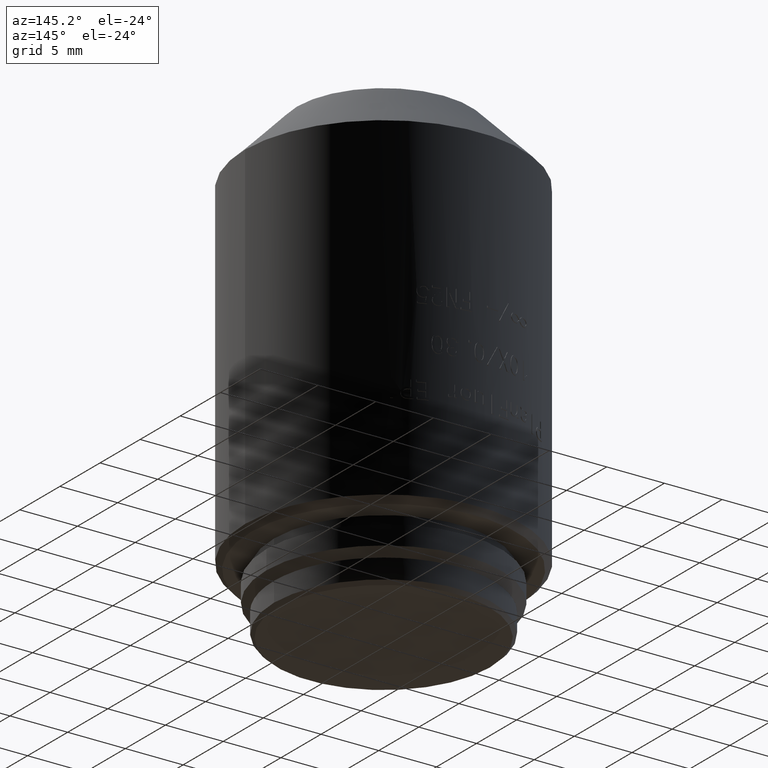
[diagram: clean part render]
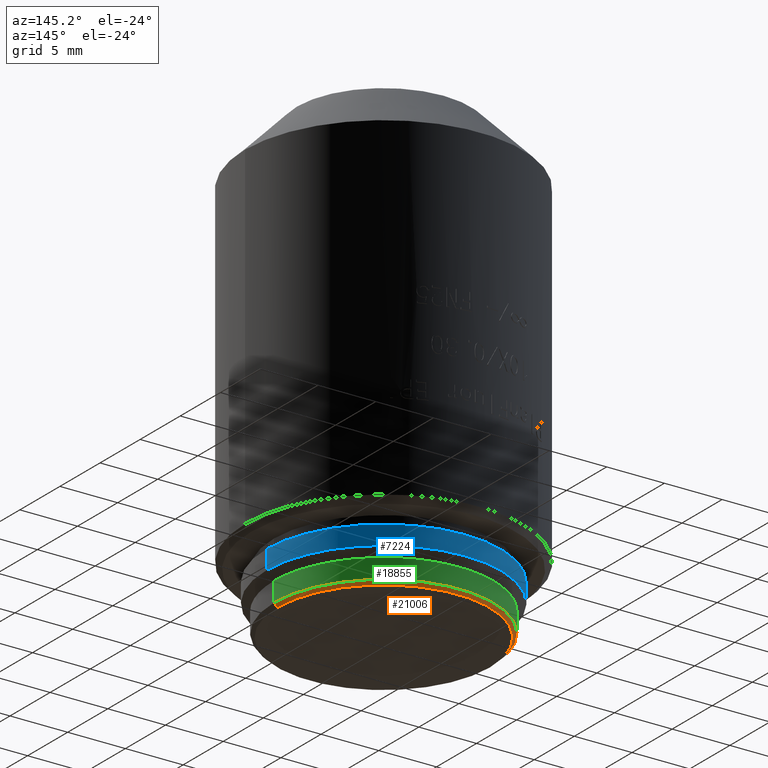
[diagram: same view with three faces highlighted in distinct colors, each labeled with its STEP entity id]
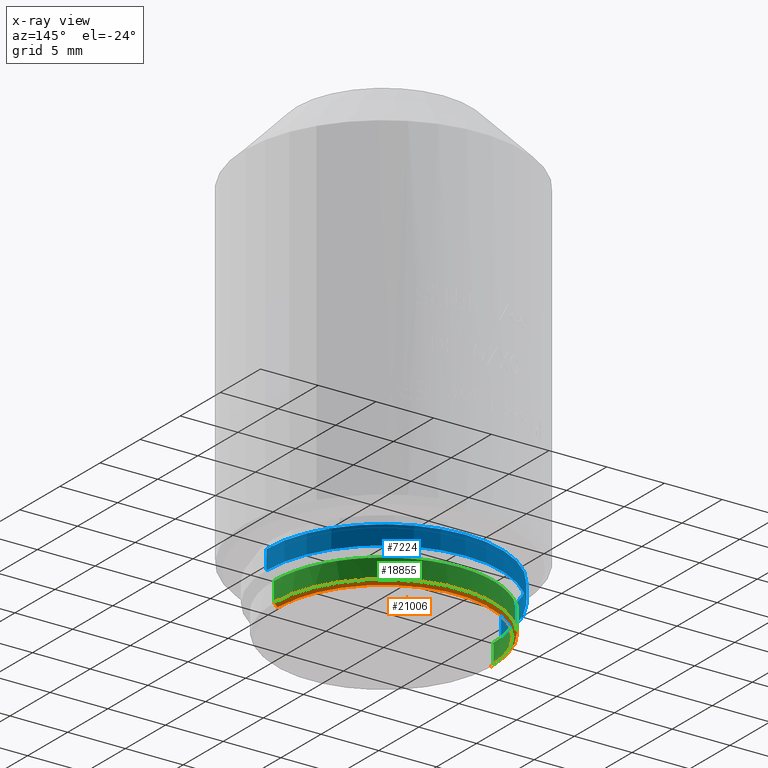
[diagram: x-ray of the same camera — body ghosted, the three highlighted faces saturated]
A machine part, auxiliary view with three faces highlighted in distinct colors.
The next image is the same camera in x-ray (body ghosted, the three faces saturated) — at least one of them is partly hidden behind the body in this view.
Their STEP definitions:

[orange] entity #21006 — the highlighted conical surface has half-angle 45 deg.
#134 = EDGE_CURVE ( 'NONE', #16031, #6677, #10818, .T. ) ;
#489 = CARTESIAN_POINT ( 'NONE',  ( -9.199999999999999289, 1.126675055215564822E-15, 0.000000000000000000 ) ) ;
#619 = VERTEX_POINT ( 'NONE', #1857 ) ;
#782 = ORIENTED_EDGE ( 'NONE', *, *, #13227, .F. ) ;
#1392 = EDGE_LOOP ( 'NONE', ( #18252, #5005, #782, #6627 ) ) ;
#1857 = CARTESIAN_POINT ( 'NONE',  ( 9.199999999999999289, 0.000000000000000000, 0.000000000000000000 ) ) ;
#2371 = CIRCLE ( 'NONE', #4894, 9.500000000000000000 ) ;
#2562 = CARTESIAN_POINT ( 'NONE',  ( 9.499999999999985789, 0.000000000000000000, 0.2999999999999929945 ) ) ;
#2755 = DIRECTION ( 'NONE',  ( 0.7071067811865391350, 0.000000000000000000, 0.7071067811865560104 ) ) ;
#2844 = CONICAL_SURFACE ( 'NONE', #6074, 9.199999999999999289, 0.7853981633974362886 ) ;
#3671 = VECTOR ( 'NONE', #8819, 999.9999999999998863 ) ;
#3973 = CIRCLE ( 'NONE', #16486, 9.199999999999999289 ) ;
#4886 = LINE ( 'NONE', #19963, #9997 ) ;
#4894 = AXIS2_PLACEMENT_3D ( 'NONE', #8282, #6387, #14759 ) ;
#5005 = ORIENTED_EDGE ( 'NONE', *, *, #134, .T. ) ;
#5406 = CARTESIAN_POINT ( 'NONE',  ( -9.199999999999999289, 1.145044757202774464E-15, 0.000000000000000000 ) ) ;
#6074 = AXIS2_PLACEMENT_3D ( 'NONE', #15146, #18394, #13582 ) ;
#6387 = DIRECTION ( 'NONE',  ( 0.000000000000000000, 0.000000000000000000, 1.000000000000000000 ) ) ;
#6627 = ORIENTED_EDGE ( 'NONE', *, *, #21749, .F. ) ;
#6677 = VERTEX_POINT ( 'NONE', #15936 ) ;
#7778 = CARTESIAN_POINT ( 'NONE',  ( 0.000000000000000000, 0.000000000000000000, 0.000000000000000000 ) ) ;
#8282 = CARTESIAN_POINT ( 'NONE',  ( 0.000000000000000000, 0.000000000000000000, 0.2999999999999929945 ) ) ;
#8819 = DIRECTION ( 'NONE',  ( -0.7071067811865391350, 8.659560562354830553E-17, 0.7071067811865560104 ) ) ;
#9997 = VECTOR ( 'NONE', #2755, 999.9999999999998863 ) ;
#10818 = LINE ( 'NONE', #489, #3671 ) ;
#11576 = FACE_OUTER_BOUND ( 'NONE', #1392, .T. ) ;
#12026 = VERTEX_POINT ( 'NONE', #2562 ) ;
#13227 = EDGE_CURVE ( 'NONE', #12026, #6677, #2371, .T. ) ;
#13582 = DIRECTION ( 'NONE',  ( 1.000000000000000000, 0.000000000000000000, 0.000000000000000000 ) ) ;
#14469 = DIRECTION ( 'NONE',  ( 1.000000000000000000, 0.000000000000000000, 0.000000000000000000 ) ) ;
#14759 = DIRECTION ( 'NONE',  ( 1.000000000000000000, 0.000000000000000000, 0.000000000000000000 ) ) ;
#15146 = CARTESIAN_POINT ( 'NONE',  ( 0.000000000000000000, 0.000000000000000000, 0.000000000000000000 ) ) ;
#15936 = CARTESIAN_POINT ( 'NONE',  ( -9.499999999999985789, 1.163414459189983710E-15, 0.2999999999999929945 ) ) ;
#16031 = VERTEX_POINT ( 'NONE', #5406 ) ;
#16486 = AXIS2_PLACEMENT_3D ( 'NONE', #7778, #21411, #14469 ) ;
#16730 = EDGE_CURVE ( 'NONE', #16031, #619, #3973, .T. ) ;
#18252 = ORIENTED_EDGE ( 'NONE', *, *, #16730, .F. ) ;
#18394 = DIRECTION ( 'NONE',  ( 0.000000000000000000, 0.000000000000000000, 1.000000000000000000 ) ) ;
#19963 = CARTESIAN_POINT ( 'NONE',  ( 9.199999999999999289, 0.000000000000000000, 0.000000000000000000 ) ) ;
#21006 = ADVANCED_FACE ( 'NONE', ( #11576 ), #2844, .T. ) ;
#21411 = DIRECTION ( 'NONE',  ( 0.000000000000000000, 0.000000000000000000, -1.000000000000000000 ) ) ;
#21749 = EDGE_CURVE ( 'NONE', #619, #12026, #4886, .T. ) ;

[blue] entity #7224 — the highlighted cylindrical surface (partial cylindrical patch) has radius 10.16 mm, axis along (0, 0, -1).
#591 = DIRECTION ( 'NONE',  ( -1.000000000000000000, 0.000000000000000000, 0.000000000000000000 ) ) ;
#656 = AXIS2_PLACEMENT_3D ( 'NONE', #18604, #13574, #12009 ) ;
#1428 = DIRECTION ( 'NONE',  ( 0.000000000000000000, 0.000000000000000000, -1.000000000000000000 ) ) ;
#1761 = CARTESIAN_POINT ( 'NONE',  ( 10.16000000000000014, 1.244241147933710864E-15, 5.299999999999999822 ) ) ;
#1965 = ORIENTED_EDGE ( 'NONE', *, *, #9893, .T. ) ;
#2047 = ORIENTED_EDGE ( 'NONE', *, *, #18462, .F. ) ;
#2617 = CARTESIAN_POINT ( 'NONE',  ( -10.16000000000000014, 1.244241147933710864E-15, 2.649999999999999911 ) ) ;
#2622 = EDGE_CURVE ( 'NONE', #9339, #4811, #3355, .T. ) ;
#3145 = AXIS2_PLACEMENT_3D ( 'NONE', #21306, #15827, #591 ) ;
#3282 = AXIS2_PLACEMENT_3D ( 'NONE', #16138, #21391, #4300 ) ;
#3355 = LINE ( 'NONE', #1761, #5466 ) ;
#3577 = VECTOR ( 'NONE', #12926, 1000.000000000000000 ) ;
#4300 = DIRECTION ( 'NONE',  ( -1.000000000000000000, 0.000000000000000000, 0.000000000000000000 ) ) ;
#4811 = VERTEX_POINT ( 'NONE', #11599 ) ;
#5466 = VECTOR ( 'NONE', #1428, 1000.000000000000000 ) ;
#7224 = ADVANCED_FACE ( 'NONE', ( #19592 ), #7643, .T. ) ;
#7643 = CYLINDRICAL_SURFACE ( 'NONE', #3282, 10.16000000000000014 ) ;
#8726 = VERTEX_POINT ( 'NONE', #2617 ) ;
#9339 = VERTEX_POINT ( 'NONE', #11593 ) ;
#9893 = EDGE_CURVE ( 'NONE', #4811, #8726, #20329, .T. ) ;
#11593 = CARTESIAN_POINT ( 'NONE',  ( 10.16000000000000014, 1.244241147933710864E-15, 4.299999999999999822 ) ) ;
#11599 = CARTESIAN_POINT ( 'NONE',  ( 10.16000000000000014, 0.000000000000000000, 2.649999999999999911 ) ) ;
#12009 = DIRECTION ( 'NONE',  ( -1.000000000000000000, 0.000000000000000000, 0.000000000000000000 ) ) ;
#12762 = CIRCLE ( 'NONE', #3145, 10.16000000000000014 ) ;
#12926 = DIRECTION ( 'NONE',  ( 0.000000000000000000, 0.000000000000000000, -1.000000000000000000 ) ) ;
#13254 = CARTESIAN_POINT ( 'NONE',  ( -10.16000000000000014, 0.000000000000000000, 5.299999999999999822 ) ) ;
#13574 = DIRECTION ( 'NONE',  ( 0.000000000000000000, 0.000000000000000000, 1.000000000000000000 ) ) ;
#14237 = VERTEX_POINT ( 'NONE', #15765 ) ;
#15045 = LINE ( 'NONE', #13254, #3577 ) ;
#15185 = ORIENTED_EDGE ( 'NONE', *, *, #2622, .T. ) ;
#15765 = CARTESIAN_POINT ( 'NONE',  ( -10.16000000000000014, 0.000000000000000000, 4.299999999999999822 ) ) ;
#15827 = DIRECTION ( 'NONE',  ( 0.000000000000000000, 0.000000000000000000, 1.000000000000000000 ) ) ;
#16138 = CARTESIAN_POINT ( 'NONE',  ( 0.000000000000000000, 0.000000000000000000, 5.299999999999999822 ) ) ;
#18462 = EDGE_CURVE ( 'NONE', #9339, #14237, #12762, .T. ) ;
#18604 = CARTESIAN_POINT ( 'NONE',  ( 0.000000000000000000, 0.000000000000000000, 2.649999999999999911 ) ) ;
#19592 = FACE_OUTER_BOUND ( 'NONE', #21048, .T. ) ;
#20268 = ORIENTED_EDGE ( 'NONE', *, *, #21868, .F. ) ;
#20329 = CIRCLE ( 'NONE', #656, 10.16000000000000014 ) ;
#21048 = EDGE_LOOP ( 'NONE', ( #2047, #15185, #1965, #20268 ) ) ;
#21306 = CARTESIAN_POINT ( 'NONE',  ( 0.000000000000000000, 0.000000000000000000, 4.299999999999999822 ) ) ;
#21391 = DIRECTION ( 'NONE',  ( 0.000000000000000000, 0.000000000000000000, -1.000000000000000000 ) ) ;
#21868 = EDGE_CURVE ( 'NONE', #14237, #8726, #15045, .T. ) ;

[green] entity #18855 — the highlighted cylindrical surface (partial cylindrical patch) has radius 9.5 mm, axis along (0, 0, -1).
#332 = LINE ( 'NONE', #12013, #15750 ) ;
#546 = DIRECTION ( 'NONE',  ( 0.000000000000000000, 0.000000000000000000, -1.000000000000000000 ) ) ;
#2239 = FACE_OUTER_BOUND ( 'NONE', #19949, .T. ) ;
#2371 = CIRCLE ( 'NONE', #4894, 9.500000000000000000 ) ;
#2562 = CARTESIAN_POINT ( 'NONE',  ( 9.499999999999985789, 0.000000000000000000, 0.2999999999999929945 ) ) ;
#4144 = DIRECTION ( 'NONE',  ( 0.000000000000000000, 0.000000000000000000, -1.000000000000000000 ) ) ;
#4333 = CARTESIAN_POINT ( 'NONE',  ( -9.500000000000000000, 0.000000000000000000, 2.000000000000000000 ) ) ;
#4707 = LINE ( 'NONE', #17205, #5899 ) ;
#4894 = AXIS2_PLACEMENT_3D ( 'NONE', #8282, #6387, #14759 ) ;
#5899 = VECTOR ( 'NONE', #12171, 1000.000000000000000 ) ;
#5942 = CARTESIAN_POINT ( 'NONE',  ( 0.000000000000000000, 0.000000000000000000, 2.000000000000000000 ) ) ;
#6368 = AXIS2_PLACEMENT_3D ( 'NONE', #5942, #4144, #17885 ) ;
#6387 = DIRECTION ( 'NONE',  ( 0.000000000000000000, 0.000000000000000000, 1.000000000000000000 ) ) ;
#6677 = VERTEX_POINT ( 'NONE', #15936 ) ;
#7727 = ORIENTED_EDGE ( 'NONE', *, *, #13227, .T. ) ;
#7999 = ORIENTED_EDGE ( 'NONE', *, *, #19879, .F. ) ;
#8282 = CARTESIAN_POINT ( 'NONE',  ( 0.000000000000000000, 0.000000000000000000, 0.2999999999999929945 ) ) ;
#9088 = CYLINDRICAL_SURFACE ( 'NONE', #11714, 9.500000000000000000 ) ;
#11714 = AXIS2_PLACEMENT_3D ( 'NONE', #12531, #546, #19353 ) ;
#12013 = CARTESIAN_POINT ( 'NONE',  ( 9.500000000000000000, 1.163414459189985485E-15, 2.000000000000000000 ) ) ;
#12026 = VERTEX_POINT ( 'NONE', #2562 ) ;
#12171 = DIRECTION ( 'NONE',  ( 0.000000000000000000, 0.000000000000000000, -1.000000000000000000 ) ) ;
#12531 = CARTESIAN_POINT ( 'NONE',  ( 0.000000000000000000, 0.000000000000000000, 2.000000000000000000 ) ) ;
#13227 = EDGE_CURVE ( 'NONE', #12026, #6677, #2371, .T. ) ;
#14759 = DIRECTION ( 'NONE',  ( 1.000000000000000000, 0.000000000000000000, 0.000000000000000000 ) ) ;
#15750 = VECTOR ( 'NONE', #20715, 1000.000000000000000 ) ;
#15936 = CARTESIAN_POINT ( 'NONE',  ( -9.499999999999985789, 1.163414459189983710E-15, 0.2999999999999929945 ) ) ;
#15977 = CIRCLE ( 'NONE', #6368, 9.500000000000000000 ) ;
#16926 = EDGE_CURVE ( 'NONE', #17932, #12026, #332, .T. ) ;
#17006 = ORIENTED_EDGE ( 'NONE', *, *, #16926, .T. ) ;
#17130 = CARTESIAN_POINT ( 'NONE',  ( 9.500000000000000000, 1.163414459189985485E-15, 2.000000000000000000 ) ) ;
#17205 = CARTESIAN_POINT ( 'NONE',  ( -9.500000000000000000, 0.000000000000000000, 2.000000000000000000 ) ) ;
#17885 = DIRECTION ( 'NONE',  ( -1.000000000000000000, 0.000000000000000000, 0.000000000000000000 ) ) ;
#17932 = VERTEX_POINT ( 'NONE', #17130 ) ;
#18855 = ADVANCED_FACE ( 'NONE', ( #2239 ), #9088, .T. ) ;
#19353 = DIRECTION ( 'NONE',  ( -1.000000000000000000, 0.000000000000000000, 0.000000000000000000 ) ) ;
#19586 = EDGE_CURVE ( 'NONE', #21626, #17932, #15977, .T. ) ;
#19879 = EDGE_CURVE ( 'NONE', #21626, #6677, #4707, .T. ) ;
#19949 = EDGE_LOOP ( 'NONE', ( #20417, #17006, #7727, #7999 ) ) ;
#20417 = ORIENTED_EDGE ( 'NONE', *, *, #19586, .T. ) ;
#20715 = DIRECTION ( 'NONE',  ( 0.000000000000000000, 0.000000000000000000, -1.000000000000000000 ) ) ;
#21626 = VERTEX_POINT ( 'NONE', #4333 ) ;